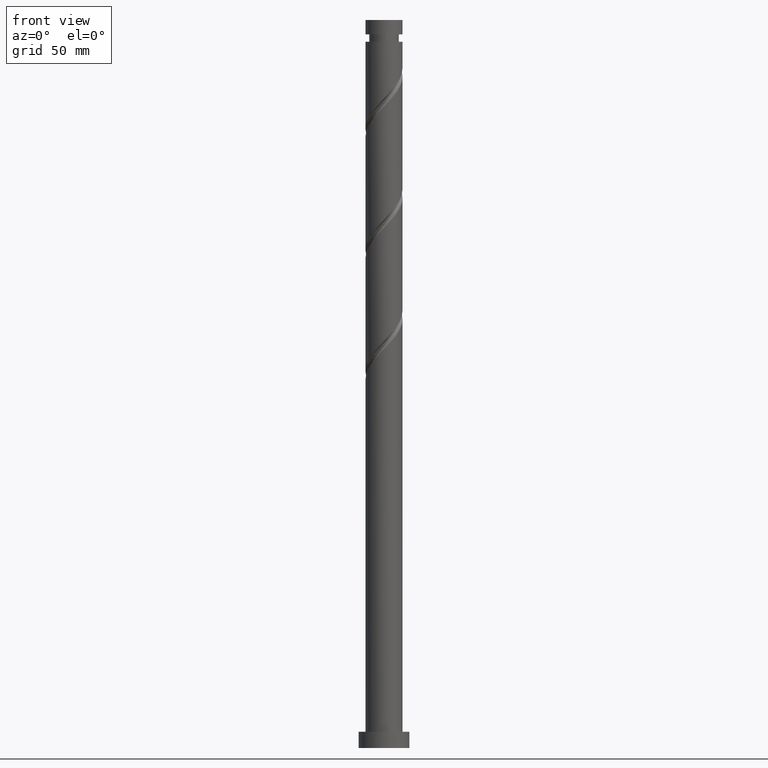
[diagram: clean part render]
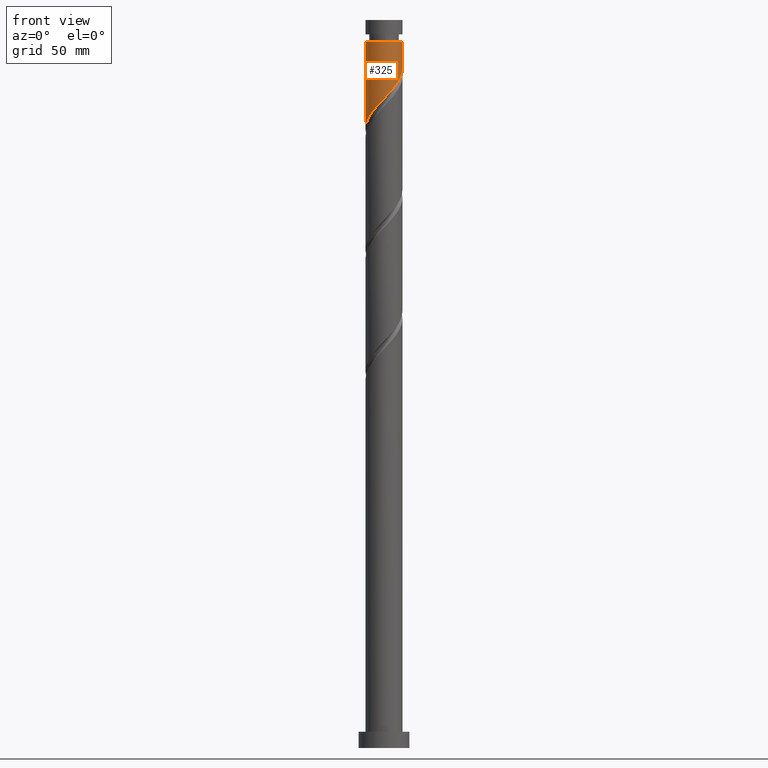
[diagram: same view with one face highlighted and labeled with its STEP entity id]
A machine part, front view. The second image highlights one B-rep face of the part: STEP entity #325.
In plain terms, the highlighted cylindrical surface (edge-blend (fillet) strip) has radius 8 mm, axis along (-0, -0, -1).
Its self-contained STEP definition (entity closure, byte-faithful):
#13 = EDGE_CURVE ( 'NONE', #203, #517, #178, .T. ) ;
#42 = CARTESIAN_POINT ( 'NONE',  ( 6.372861733016056185, -4.835972842340986233, 288.7192742932560350 ) ) ;
#50 = CARTESIAN_POINT ( 'NONE',  ( 7.289185977457871779, -3.296629761746308507, 290.5942742932561487 ) ) ;
#178 = LINE ( 'NONE', #1835, #431 ) ;
#179 =( BOUNDED_CURVE ( )  B_SPLINE_CURVE ( 2, ( #1206, #467, #1506, #1679, #50, #1358, #42, #332, #620, #1810, #478, #1069, #1660, #1819, #184, #778, #1369, #487, #1078, #343, #192, #788, #1829, #1542, #1098, #214, #1688, #1388, #1838, #1244, #648 ),
 .UNSPECIFIED., .F., .T. ) 
 B_SPLINE_CURVE_WITH_KNOTS ( ( 3, 2, 2, 2, 2, 2, 2, 2, 2, 2, 2, 2, 2, 2, 2, 3 ),
 ( 0.3045303401299220836, 0.3125000000000000000, 0.3214285714285714524, 0.3303571428571428492, 0.3392857142857143016, 0.3482142857142856984, 0.3571428571428571508, 0.3660714285714285476, 0.3750000000000000000, 0.3839285714285714524, 0.3928571428571428492, 0.4017857142857143016, 0.4107142857142856984, 0.4196428571428571508, 0.4285714285714285476, 0.4295303401299221391 ),
 .UNSPECIFIED. ) 
 CURVE ( )  GEOMETRIC_REPRESENTATION_ITEM ( )  RATIONAL_B_SPLINE_CURVE ( ( 0.9079949616361913112, 0.9039886423360546930, 0.9090909090909213841, 0.9033747362665963676, 0.9090909090909213841, 0.9033747362665963676, 0.9090909090909213841, 0.9033747362665963676, 0.9090909090909213841, 0.9033747362665963676, 0.9090909090909213841, 0.9033747362665963676, 0.9090909090909213841, 0.9033747362665963676, 0.9090909090909213841, 0.9033747362665963676, 0.9090909090909213841, 0.9033747362665963676, 0.9090909090909213841, 0.9033747362665963676, 0.9090909090909213841, 0.9033747362665963676, 0.9090909090909213841, 0.9033747362665963676, 0.9090909090909213841, 0.9033747362665963676, 0.9090909090909213841, 0.9033747362665963676, 0.9090909090909213841, 0.9084770030214630587, 0.9079949616361913112 ) ) 
 REPRESENTATION_ITEM ( '' )  );
#184 = CARTESIAN_POINT ( 'NONE',  ( 0.1924984826887007339, -7.997683685553119481, 281.2192742932561487 ) ) ;
#192 = CARTESIAN_POINT ( 'NONE',  ( -4.835972842340986233, -6.372861733016056185, 275.5942742932559781 ) ) ;
#203 = VERTEX_POINT ( 'NONE', #495 ) ;
#214 = CARTESIAN_POINT ( 'NONE',  ( -7.532665915805471180, -2.841027358113519696, 270.9067742932561487 ) ) ;
#223 = DIRECTION ( 'NONE',  ( -0.000000000000000000, -0.000000000000000000, -1.000000000000000000 ) ) ;
#323 = VERTEX_POINT ( 'NONE', #657 ) ;
#325 = ADVANCED_FACE ( 'NONE', ( #1699 ), #372, .T. ) ;
#332 = CARTESIAN_POINT ( 'NONE',  ( 5.827978455592401019, -5.554021909376823274, 287.7817742932562055 ) ) ;
#343 = CARTESIAN_POINT ( 'NONE',  ( -4.117923775305151857, -6.917745010439714015, 276.5317742932561487 ) ) ;
#372 = CYLINDRICAL_SURFACE ( 'NONE', #1703, 8.000000000000000000 ) ;
#431 = VECTOR ( 'NONE', #474, 1000.000000000000000 ) ;
#467 = CARTESIAN_POINT ( 'NONE',  ( 7.999999999999996447, -0.8040302522073778935, 293.3055202921985938 ) ) ;
#474 = DIRECTION ( 'NONE',  ( -0.000000000000000000, -0.000000000000000000, -1.000000000000000000 ) ) ;
#478 = CARTESIAN_POINT ( 'NONE',  ( 3.643500041788252375, -7.122142054571010128, 284.9692742932560918 ) ) ;
#487 = CARTESIAN_POINT ( 'NONE',  ( -2.475335748187465157, -7.660626944476032207, 278.4067742932561487 ) ) ;
#495 = CARTESIAN_POINT ( 'NONE',  ( 7.999999999999976019, 9.797174393178809880E-16, 305.5942742932561487 ) ) ;
#517 = VERTEX_POINT ( 'NONE', #775 ) ;
#582 = LINE ( 'NONE', #1876, #1328 ) ;
#620 = CARTESIAN_POINT ( 'NONE',  ( 5.136975590527694813, -6.132820051356686619, 286.8442742932562055 ) ) ;
#648 = CARTESIAN_POINT ( 'NONE',  ( -7.999999999999998224, 7.164371290332650478E-16, 267.8937913711621377 ) ) ;
#657 = CARTESIAN_POINT ( 'NONE',  ( -7.999999999999976019, 0.000000000000000000, 305.5942742932561487 ) ) ;
#659 = ORIENTED_EDGE ( 'NONE', *, *, #1385, .T. ) ;
#775 = CARTESIAN_POINT ( 'NONE',  ( 7.999999999999998224, -1.626909313846372542E-15, 294.1437913711621377 ) ) ;
#778 = CARTESIAN_POINT ( 'NONE',  ( -0.7086240505537245715, -8.019373055523965732, 280.2817742932560918 ) ) ;
#785 = DIRECTION ( 'NONE',  ( -1.000000000000000000, 0.000000000000000000, 0.000000000000000000 ) ) ;
#788 = CARTESIAN_POINT ( 'NONE',  ( -5.554021909376823274, -5.827978455592401019, 274.6567742932560918 ) ) ;
#802 = CIRCLE ( 'NONE', #1923, 7.999999999999976019 ) ;
#846 = ORIENTED_EDGE ( 'NONE', *, *, #13, .F. ) ;
#890 = EDGE_CURVE ( 'NONE', #203, #323, #802, .T. ) ;
#942 = ORIENTED_EDGE ( 'NONE', *, *, #890, .T. ) ;
#960 = CARTESIAN_POINT ( 'NONE',  ( 0.000000000000000000, 0.000000000000000000, 315.0000000000000000 ) ) ;
#970 = EDGE_LOOP ( 'NONE', ( #846, #942, #659, #999 ) ) ;
#995 = CARTESIAN_POINT ( 'NONE',  ( -7.999999999999998224, 7.164371290332650478E-16, 267.8937913711621377 ) ) ;
#999 = ORIENTED_EDGE ( 'NONE', *, *, #1783, .F. ) ;
#1069 = CARTESIAN_POINT ( 'NONE',  ( 2.841027358113519696, -7.532665915805471180, 284.0317742932559781 ) ) ;
#1078 = CARTESIAN_POINT ( 'NONE',  ( -3.296629761746307619, -7.289185977457871779, 277.4692742932561487 ) ) ;
#1098 = CARTESIAN_POINT ( 'NONE',  ( -7.122142054571010128, -3.643500041788253707, 271.8442742932560918 ) ) ;
#1206 = CARTESIAN_POINT ( 'NONE',  ( 7.999999999999998224, -1.626909313846372542E-15, 294.1437913711621377 ) ) ;
#1244 = CARTESIAN_POINT ( 'NONE',  ( -7.999999999999998224, -0.09626317733111122710, 267.9941540593872560 ) ) ;
#1328 = VECTOR ( 'NONE', #1623, 1000.000000000000000 ) ;
#1358 = CARTESIAN_POINT ( 'NONE',  ( 6.917745010439713127, -4.117923775305151857, 289.6567742932560350 ) ) ;
#1369 = CARTESIAN_POINT ( 'NONE',  ( -1.591979899370594920, -7.839999999999999858, 279.3442742932561487 ) ) ;
#1385 = EDGE_CURVE ( 'NONE', #323, #1620, #582, .T. ) ;
#1388 = CARTESIAN_POINT ( 'NONE',  ( -7.975994315582275007, -1.093621015931126372, 269.0317742932561487 ) ) ;
#1465 = DIRECTION ( 'NONE',  ( -1.000000000000000000, 0.000000000000000000, 0.000000000000000000 ) ) ;
#1506 = CARTESIAN_POINT ( 'NONE',  ( 7.839999999999999858, -1.591979899370595364, 292.4692742932562055 ) ) ;
#1542 = CARTESIAN_POINT ( 'NONE',  ( -6.711618193336550853, -4.445972725462985942, 272.7817742932560350 ) ) ;
#1571 = DIRECTION ( 'NONE',  ( -0.000000000000000000, -0.000000000000000000, -1.000000000000000000 ) ) ;
#1620 = VERTEX_POINT ( 'NONE', #995 ) ;
#1623 = DIRECTION ( 'NONE',  ( -0.000000000000000000, -0.000000000000000000, -1.000000000000000000 ) ) ;
#1660 = CARTESIAN_POINT ( 'NONE',  ( 1.967324187022322812, -7.754330115693871761, 283.0942742932560918 ) ) ;
#1679 = CARTESIAN_POINT ( 'NONE',  ( 7.660626944476032207, -2.475335748187465601, 291.5317742932561487 ) ) ;
#1686 = CARTESIAN_POINT ( 'NONE',  ( 0.000000000000000000, 0.000000000000000000, 305.5942742932561487 ) ) ;
#1688 = CARTESIAN_POINT ( 'NONE',  ( -7.754330115693871761, -1.967324187022322812, 269.9692742932562055 ) ) ;
#1699 = FACE_OUTER_BOUND ( 'NONE', #970, .T. ) ;
#1703 = AXIS2_PLACEMENT_3D ( 'NONE', #960, #223, #1465 ) ;
#1783 = EDGE_CURVE ( 'NONE', #517, #1620, #179, .T. ) ;
#1810 = CARTESIAN_POINT ( 'NONE',  ( 4.445972725462985942, -6.711618193336553517, 285.9067742932560918 ) ) ;
#1819 = CARTESIAN_POINT ( 'NONE',  ( 1.093621015931125706, -7.975994315582275007, 282.1567742932561487 ) ) ;
#1829 = CARTESIAN_POINT ( 'NONE',  ( -6.132820051356685731, -5.136975590527694813, 273.7192742932560918 ) ) ;
#1835 = CARTESIAN_POINT ( 'NONE',  ( 8.000000000000000000, 9.797174393178825657E-16, 315.0000000000000000 ) ) ;
#1838 = CARTESIAN_POINT ( 'NONE',  ( -7.997683685553119481, -0.1924984826887011502, 268.0942742932561487 ) ) ;
#1876 = CARTESIAN_POINT ( 'NONE',  ( -8.000000000000000000, 0.000000000000000000, 315.0000000000000000 ) ) ;
#1923 = AXIS2_PLACEMENT_3D ( 'NONE', #1686, #1571, #785 ) ;